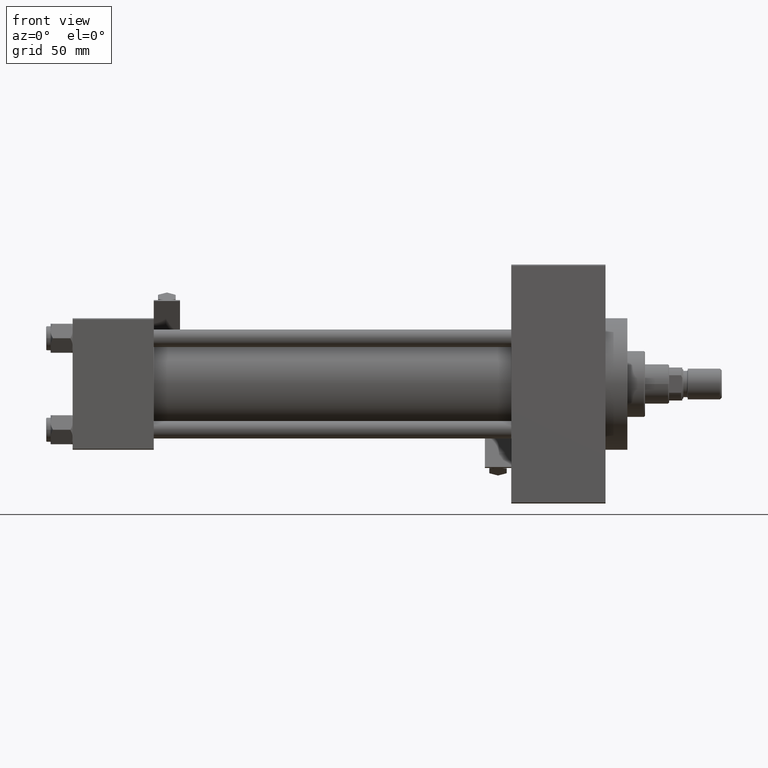
[diagram: clean part render]
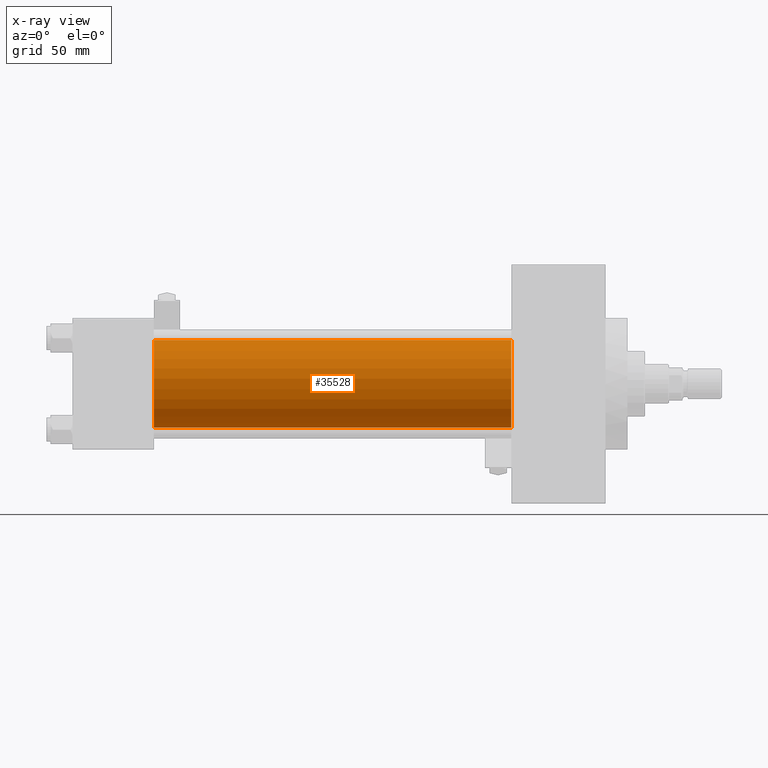
[diagram: x-ray — body ghosted, one internal face saturated and labeled with its STEP entity id]
A machine part, front view, then the same camera in x-ray: the body is ghosted and one INTERNAL B-rep face — a face not visible from any outside direction — is saturated and labeled: STEP entity #35528.
In plain terms, the highlighted cylindrical surface (partial cylindrical patch) has radius 20 mm, axis along (-1, -0, -0).
Its self-contained STEP definition (entity closure, byte-faithful):
#313 = EDGE_CURVE ( 'NONE', #19303, #49676, #7098, .T. ) ;
#1367 = DIRECTION ( 'NONE',  ( -1.000000000000000000, -0.000000000000000000, -0.000000000000000000 ) ) ;
#3266 = DIRECTION ( 'NONE',  ( 1.000000000000000000, 0.000000000000000000, 0.000000000000000000 ) ) ;
#7098 = LINE ( 'NONE', #30508, #29163 ) ;
#8083 = DIRECTION ( 'NONE',  ( 0.000000000000000000, 0.000000000000000000, -1.000000000000000000 ) ) ;
#8886 = CIRCLE ( 'NONE', #41733, 20.00000000000000000 ) ;
#9006 = EDGE_CURVE ( 'NONE', #27457, #49676, #8886, .T. ) ;
#9886 = CIRCLE ( 'NONE', #13179, 20.00000000000000000 ) ;
#13179 = AXIS2_PLACEMENT_3D ( 'NONE', #19929, #24038, #8083 ) ;
#15255 = CARTESIAN_POINT ( 'NONE',  ( 200.0000000000000000, -1.527916156705042519E-16, -20.00000000000000000 ) ) ;
#15903 = ORIENTED_EDGE ( 'NONE', *, *, #313, .T. ) ;
#16075 = CARTESIAN_POINT ( 'NONE',  ( 37.00000000000000000, -1.527916156705042519E-16, -20.00000000000000000 ) ) ;
#16889 = CARTESIAN_POINT ( 'NONE',  ( 200.0000000000000000, -2.602085213965210642E-15, 20.00000000000000000 ) ) ;
#17403 = ORIENTED_EDGE ( 'NONE', *, *, #9006, .F. ) ;
#19303 = VERTEX_POINT ( 'NONE', #15255 ) ;
#19929 = CARTESIAN_POINT ( 'NONE',  ( 200.0000000000000000, -2.602085213965210642E-15, 0.000000000000000000 ) ) ;
#21523 = ORIENTED_EDGE ( 'NONE', *, *, #44937, .T. ) ;
#22043 = VERTEX_POINT ( 'NONE', #16889 ) ;
#22320 = CARTESIAN_POINT ( 'NONE',  ( 200.0000000000000000, -2.602085213965210642E-15, 0.000000000000000000 ) ) ;
#23072 = DIRECTION ( 'NONE',  ( -1.000000000000000000, -0.000000000000000000, -0.000000000000000000 ) ) ;
#24038 = DIRECTION ( 'NONE',  ( 1.000000000000000000, 0.000000000000000000, 0.000000000000000000 ) ) ;
#24552 = CARTESIAN_POINT ( 'NONE',  ( 37.00000000000000000, -2.602085213965210642E-15, 20.00000000000000000 ) ) ;
#27457 = VERTEX_POINT ( 'NONE', #24552 ) ;
#29163 = VECTOR ( 'NONE', #38466, 1000.000000000000000 ) ;
#29281 = AXIS2_PLACEMENT_3D ( 'NONE', #22320, #23072, #38234 ) ;
#30278 = FACE_OUTER_BOUND ( 'NONE', #40986, .T. ) ;
#30508 = CARTESIAN_POINT ( 'NONE',  ( 200.0000000000000000, -1.527916156705042519E-16, -20.00000000000000000 ) ) ;
#30523 = DIRECTION ( 'NONE',  ( 0.000000000000000000, 0.000000000000000000, -1.000000000000000000 ) ) ;
#35528 = ADVANCED_FACE ( 'NONE', ( #30278 ), #46205, .F. ) ;
#37089 = CARTESIAN_POINT ( 'NONE',  ( 200.0000000000000000, -2.602085213965210642E-15, 20.00000000000000000 ) ) ;
#38234 = DIRECTION ( 'NONE',  ( 0.000000000000000000, 0.000000000000000000, 1.000000000000000000 ) ) ;
#38466 = DIRECTION ( 'NONE',  ( -1.000000000000000000, -0.000000000000000000, -0.000000000000000000 ) ) ;
#39942 = LINE ( 'NONE', #37089, #47591 ) ;
#40986 = EDGE_LOOP ( 'NONE', ( #21523, #15903, #17403, #42651 ) ) ;
#41733 = AXIS2_PLACEMENT_3D ( 'NONE', #49034, #3266, #30523 ) ;
#42651 = ORIENTED_EDGE ( 'NONE', *, *, #42920, .F. ) ;
#42920 = EDGE_CURVE ( 'NONE', #22043, #27457, #39942, .T. ) ;
#44937 = EDGE_CURVE ( 'NONE', #22043, #19303, #9886, .T. ) ;
#46205 = CYLINDRICAL_SURFACE ( 'NONE', #29281, 20.00000000000000000 ) ;
#47591 = VECTOR ( 'NONE', #1367, 1000.000000000000000 ) ;
#49034 = CARTESIAN_POINT ( 'NONE',  ( 37.00000000000000000, -2.602085213965210642E-15, 0.000000000000000000 ) ) ;
#49676 = VERTEX_POINT ( 'NONE', #16075 ) ;